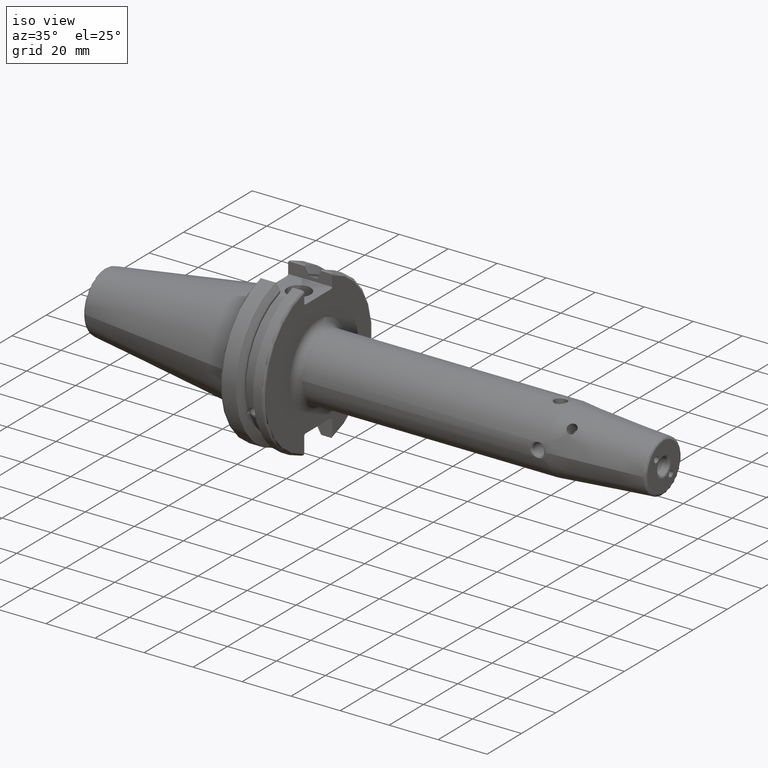
[diagram: clean part render]
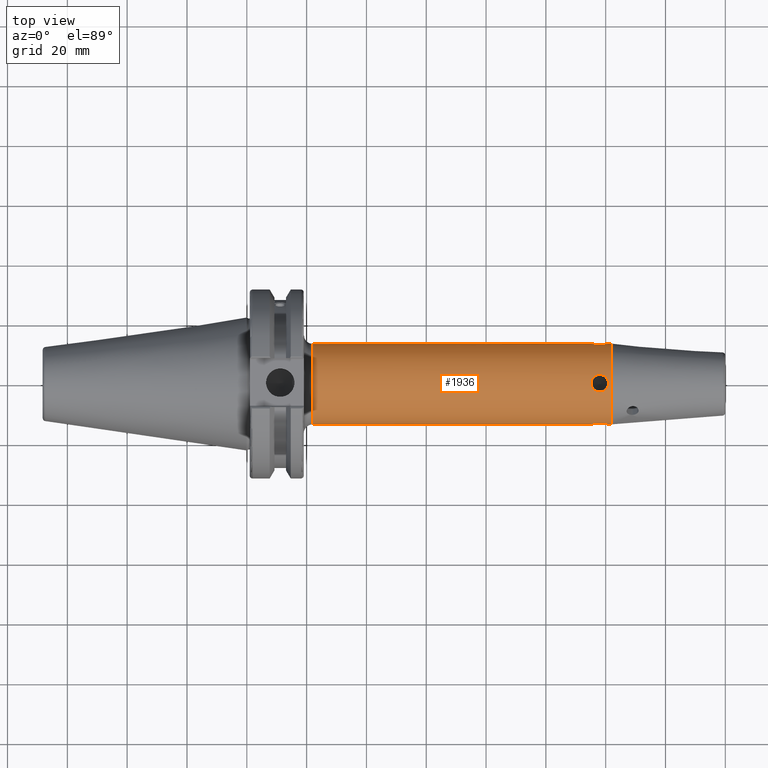
[diagram: tour spotlight — one face highlighted and labeled with its STEP entity id]
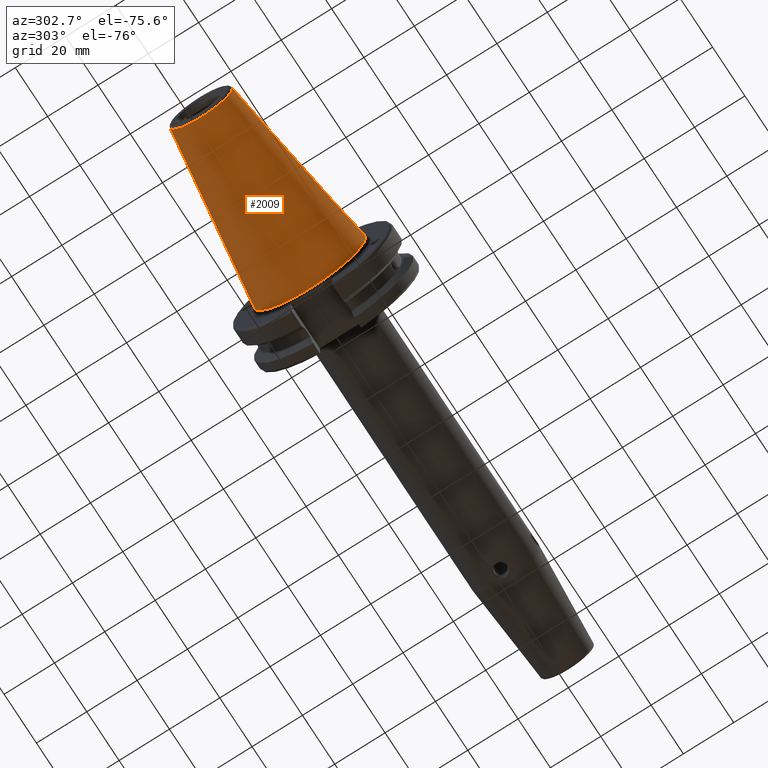
[diagram: tour spotlight — one face highlighted and labeled with its STEP entity id]
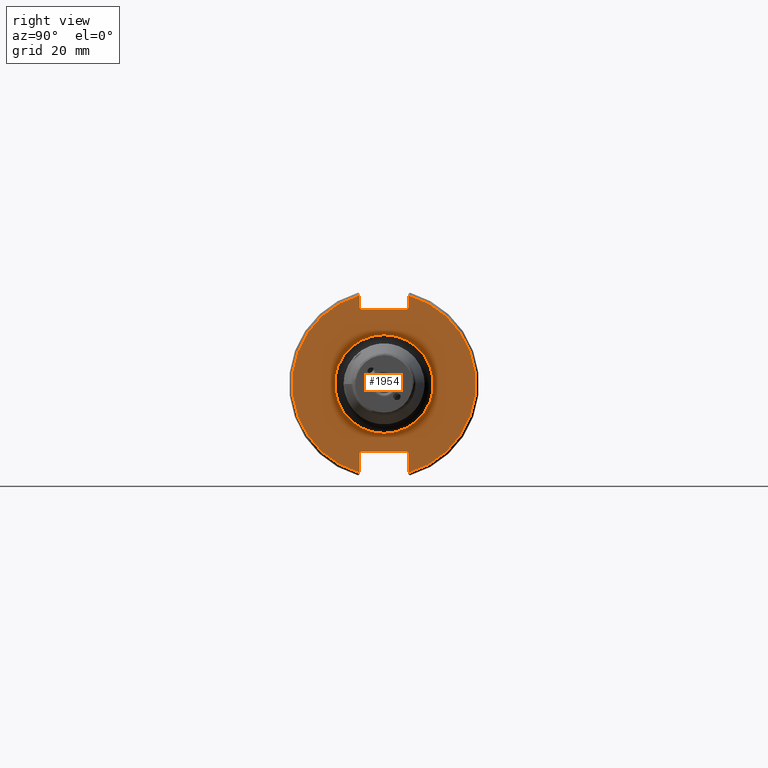
[diagram: tour spotlight — one face highlighted and labeled with its STEP entity id]
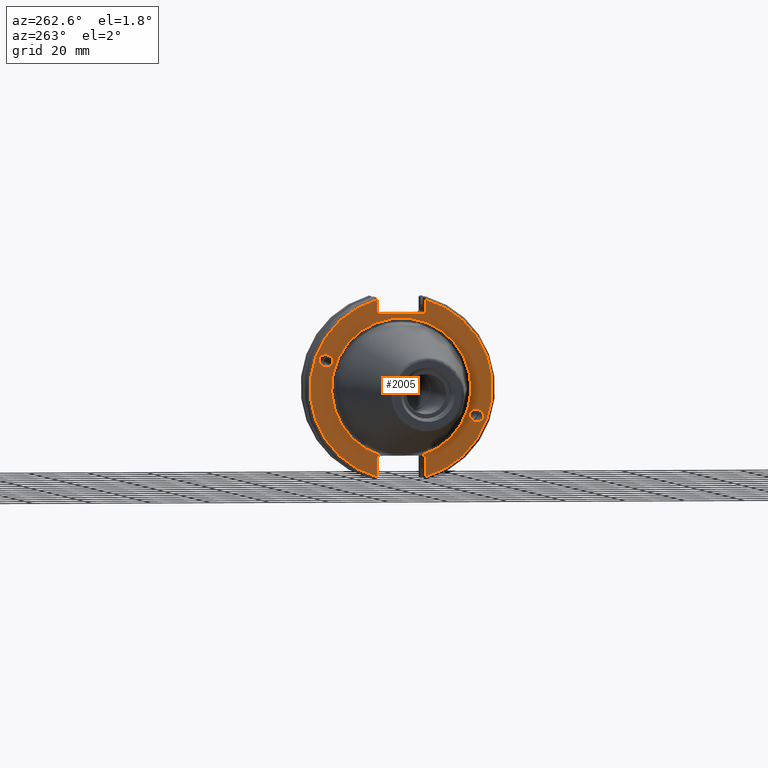
[diagram: tour spotlight — one face highlighted and labeled with its STEP entity id]
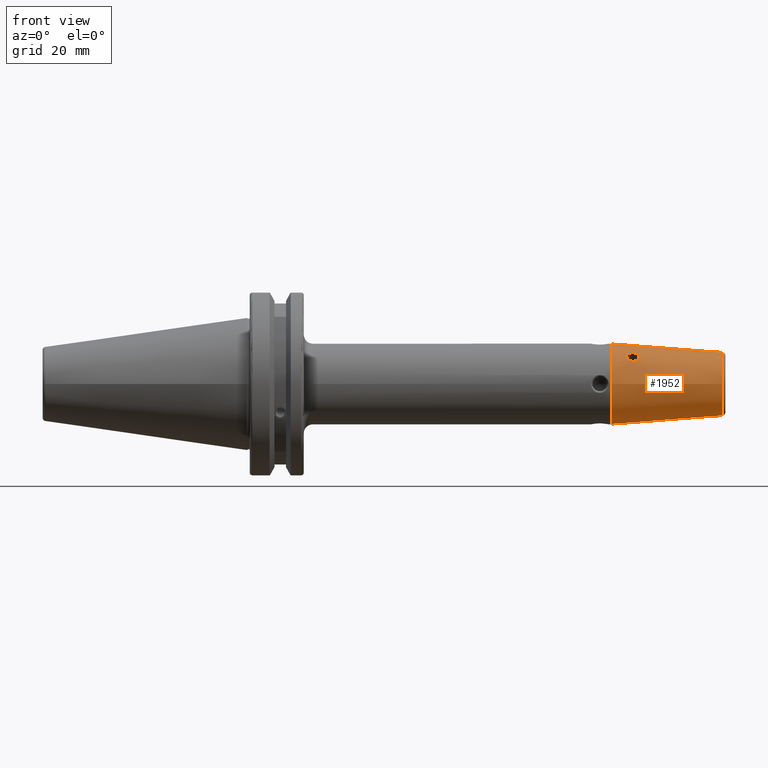
[diagram: tour spotlight — one face highlighted and labeled with its STEP entity id]
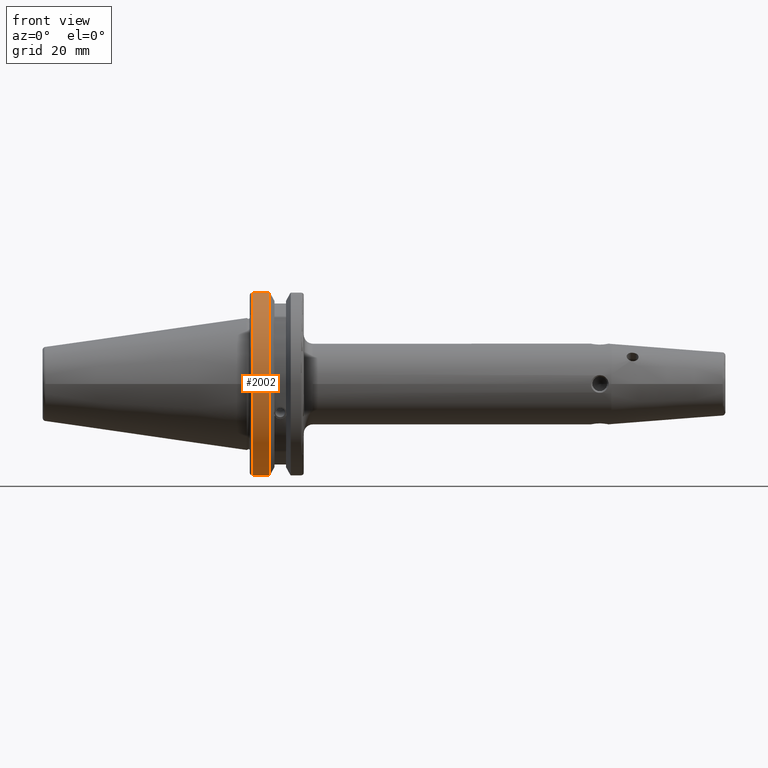
[diagram: tour spotlight — one face highlighted and labeled with its STEP entity id]
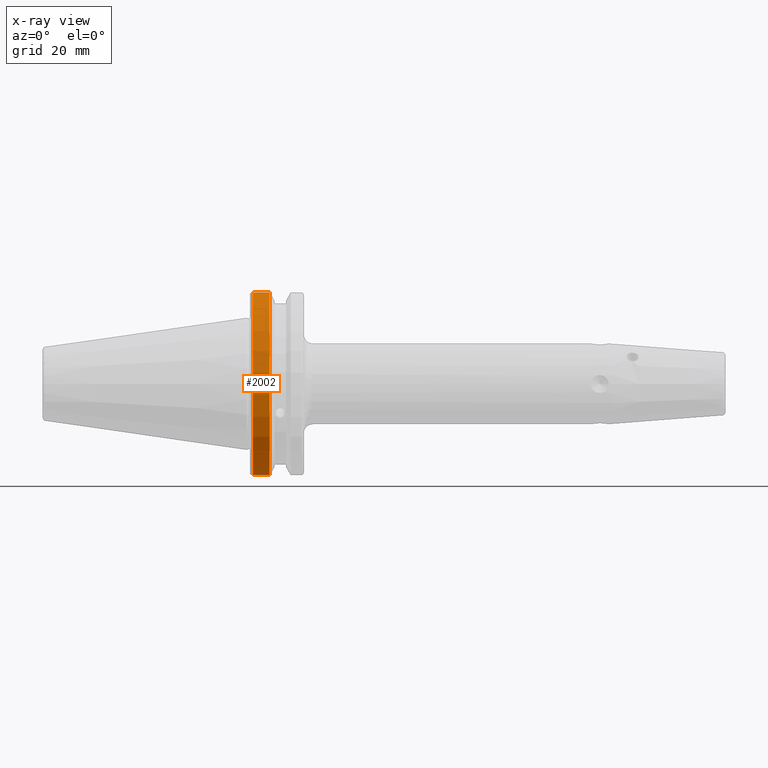
[diagram: x-ray of the same camera — body ghosted, this tour face saturated]
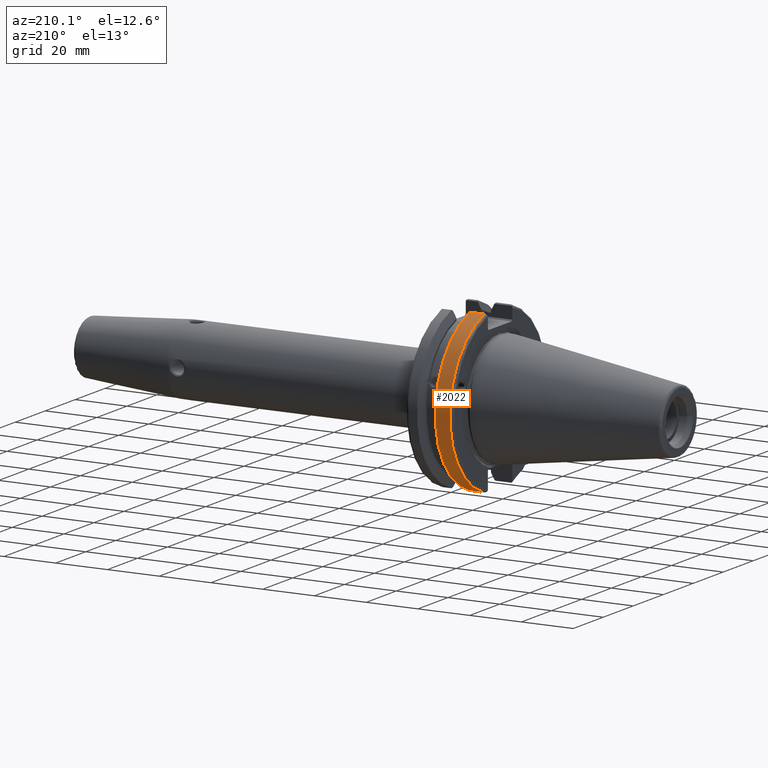
[diagram: tour spotlight — one face highlighted and labeled with its STEP entity id]
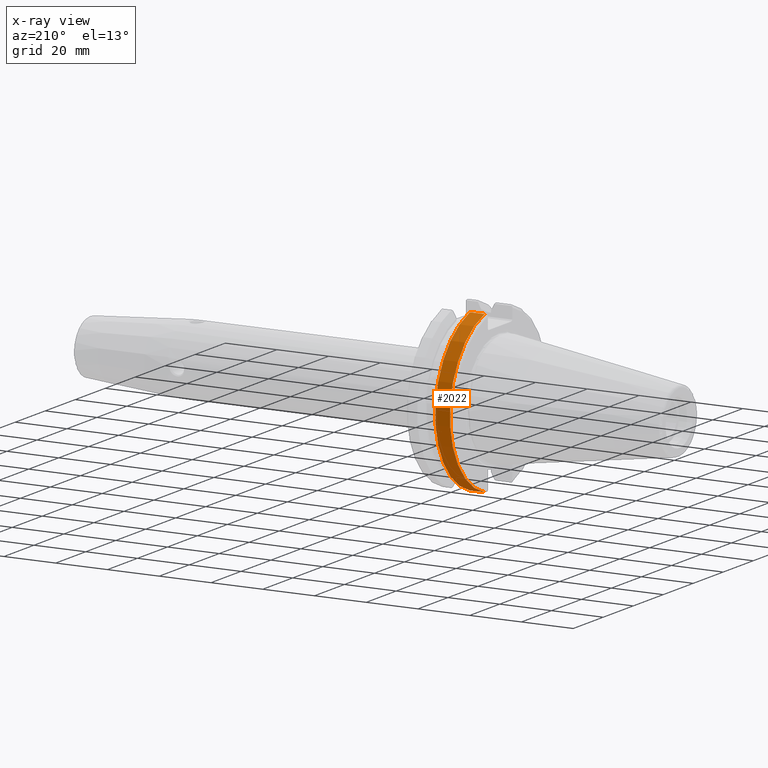
[diagram: x-ray of the same camera — body ghosted, this tour face saturated]
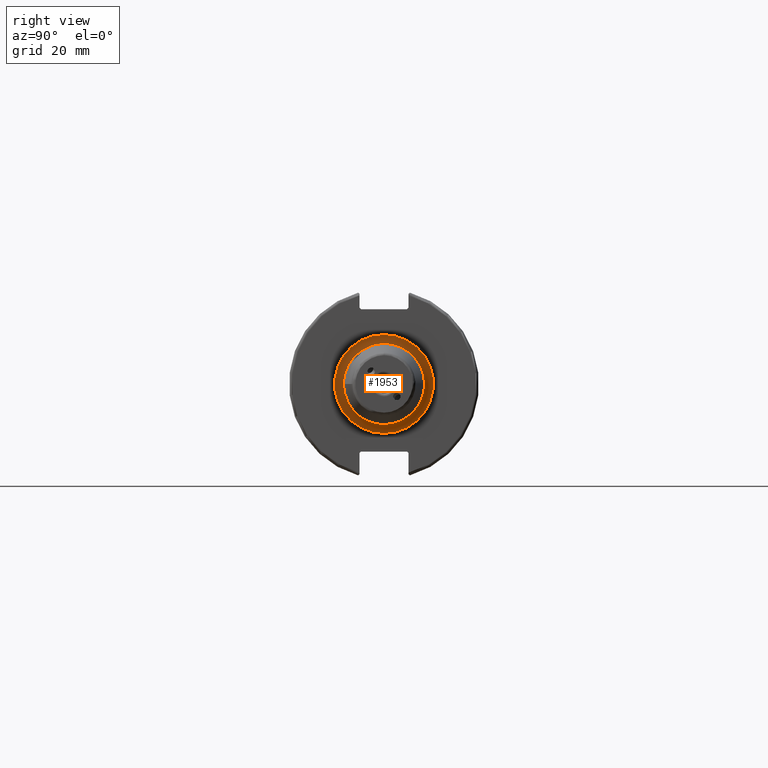
[diagram: tour spotlight — one face highlighted and labeled with its STEP entity id]
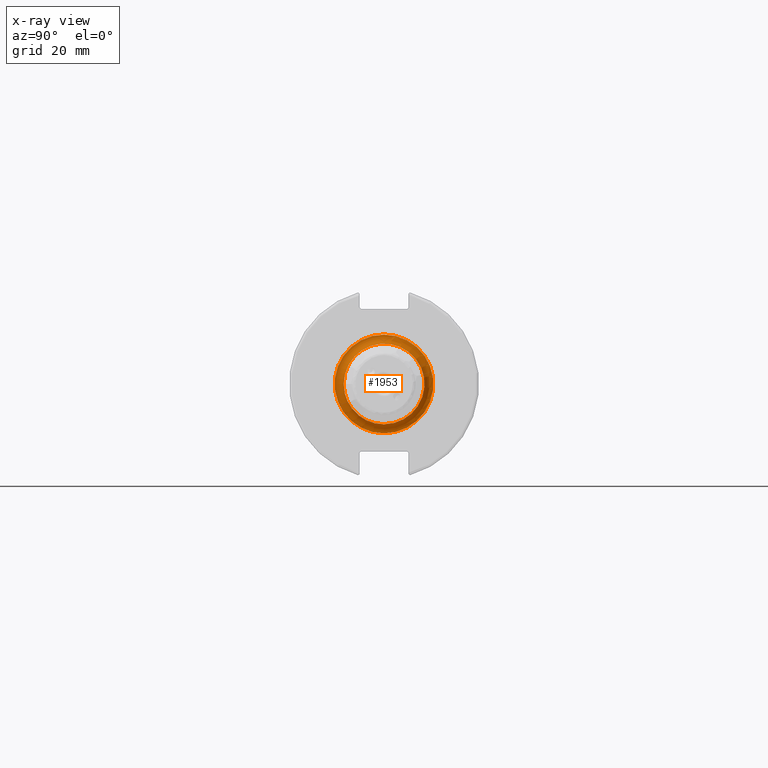
[diagram: x-ray of the same camera — body ghosted, this tour face saturated]
A machine part: a face-by-face anatomy tour. The part has 112 B-rep faces; the first image is the clean iso view, then the 8 largest visible faces are spotlighted one at a time (largest first), each with its STEP entity span.

Face 1 — top view, entity #1936. In plain terms, the highlighted cylindrical surface (bore or boss wall) has radius 13.5001 mm, axis along (1, 0, 0).
Definition (entity closure, byte-faithful):
#99=FACE_BOUND('',#270,.T.);
#100=FACE_BOUND('',#271,.T.);
#101=FACE_BOUND('',#272,.T.);
#157=FACE_OUTER_BOUND('',#269,.T.);
#269=EDGE_LOOP('',(#1322,#1323,#1324,#1325,#1326,#1327,#1328,#1329,#1330));
#270=EDGE_LOOP('',(#1331));
#271=EDGE_LOOP('',(#1332));
#272=EDGE_LOOP('',(#1333));
#405=LINE('',#3281,#522);
#406=LINE('',#3301,#523);
#522=VECTOR('',#2311,13.5001090641545);
#523=VECTOR('',#2312,13.5001090641545);
#636=CIRCLE('',#2074,13.5001090641545);
#637=CIRCLE('',#2075,13.5001090641545);
#638=CIRCLE('',#2076,13.5001090641545);
#741=B_SPLINE_CURVE_WITH_KNOTS('',3,(#3247,#3248,#3249,#3250,#3251,#3252,
#3253,#3254,#3255,#3256,#3257,#3258,#3259,#3260,#3261,#3262,#3263,#3264,
#3265,#3266,#3267,#3268,#3269,#3270,#3271,#3272,#3273,#3274,#3275,#3276),
 .UNSPECIFIED.,.T.,.F.,(4,1,1,1,1,1,2,2,2,1,1,1,1,1,1,1,1,2,1,1,1,1,1,4),
(-2.59928120698121,-2.50644973530331,-2.41361826362541,-2.39041039570593,
-2.36720252778646,-2.32078679194751,-2.22795532026961,-2.13512207236923,
-2.04228882446885,-1.97266566476604,-1.90304250506324,-1.83341934536043,
-1.79860776550903,-1.76379618565763,-1.69417302595482,-1.62454986625202,
-1.58973828640061,-1.48530354684641,-1.39247207516851,-1.34605633932956,
-1.31124453745034,-1.2996406034906,-1.2068091318127,-1.1139776601348),
 .UNSPECIFIED.);
#742=B_SPLINE_CURVE_WITH_KNOTS('',3,(#3283,#3284,#3285,#3286,#3287,#3288,
#3289,#3290,#3291,#3292,#3293,#3294,#3295,#3296,#3297,#3298,#3299),
 .UNSPECIFIED.,.F.,.F.,(4,1,1,1,1,1,1,2,1,1,1,1,1,4),(-1.85662943355801,
-1.83341934536043,-1.79860776550903,-1.76379618565763,-1.69417302595482,
-1.62454986625202,-1.58973828640061,-1.48530354684641,-1.39247207516851,
-1.34605633932956,-1.31124453745034,-1.2996406034906,-1.2068091318127,-1.1139776601348),
 .UNSPECIFIED.);
#743=B_SPLINE_CURVE_WITH_KNOTS('',3,(#3305,#3306,#3307,#3308,#3309,#3310,
#3311,#3312,#3313,#3314,#3315,#3316,#3317,#3318,#3319,#3320,#3321),
 .UNSPECIFIED.,.F.,.F.,(4,1,1,1,1,1,2,2,2,1,1,4),(-2.59928120698121,-2.50644973530331,
-2.41361826362541,-2.39041039570593,-2.36720252778646,-2.32078679194751,
-2.22795532026961,-2.13512207236923,-2.04228882446885,-1.97266566476604,
-1.90304250506324,-1.85662943355801),.UNSPECIFIED.);
#744=B_SPLINE_CURVE_WITH_KNOTS('',3,(#3323,#3324,#3325,#3326,#3327,#3328,
#3329,#3330,#3331,#3332,#3333,#3334,#3335,#3336,#3337,#3338,#3339,#3340,
#3341,#3342,#3343,#3344,#3345,#3346,#3347,#3348,#3349,#3350,#3351,#3352),
 .UNSPECIFIED.,.T.,.F.,(4,1,1,1,1,1,2,2,2,1,1,1,1,1,1,1,1,2,1,1,1,1,1,4),
(-2.59928120698121,-2.50644973530331,-2.41361826362541,-2.39041039570593,
-2.36720252778646,-2.32078679194751,-2.22795532026961,-2.13512207236923,
-2.04228882446885,-1.97266566476604,-1.90304250506324,-1.83341934536043,
-1.79860776550903,-1.76379618565763,-1.69417302595482,-1.62454986625202,
-1.58973828640061,-1.48530354684641,-1.39247207516851,-1.34605633932956,
-1.31124453745034,-1.2996406034906,-1.2068091318127,-1.1139776601348),
 .UNSPECIFIED.);
#745=B_SPLINE_CURVE_WITH_KNOTS('',3,(#3354,#3355,#3356,#3357,#3358,#3359,
#3360,#3361,#3362,#3363,#3364,#3365,#3366,#3367,#3368,#3369,#3370,#3371,
#3372,#3373,#3374,#3375,#3376,#3377,#3378,#3379,#3380,#3381,#3382,#3383),
 .UNSPECIFIED.,.T.,.F.,(4,1,1,1,1,1,2,2,2,1,1,1,1,1,1,1,1,2,1,1,1,1,1,4),
(-2.59928120698121,-2.50644973530331,-2.41361826362541,-2.39041039570593,
-2.36720252778646,-2.32078679194751,-2.22795532026961,-2.13512207236923,
-2.04228882446885,-1.97266566476604,-1.90304250506324,-1.83341934536043,
-1.79860776550903,-1.76379618565763,-1.69417302595482,-1.62454986625202,
-1.58973828640061,-1.48530354684641,-1.39247207516851,-1.34605633932956,
-1.31124453745034,-1.2996406034906,-1.2068091318127,-1.1139776601348),
 .UNSPECIFIED.);
#800=VERTEX_POINT('',#3214);
#802=VERTEX_POINT('',#3278);
#803=VERTEX_POINT('',#3280);
#804=VERTEX_POINT('',#3282);
#805=VERTEX_POINT('',#3300);
#806=VERTEX_POINT('',#3302);
#807=VERTEX_POINT('',#3322);
#808=VERTEX_POINT('',#3353);
#1009=EDGE_CURVE('',#800,#800,#741,.T.);
#1010=EDGE_CURVE('',#802,#802,#636,.T.);
#1011=EDGE_CURVE('',#802,#803,#405,.T.);
#1012=EDGE_CURVE('',#804,#803,#742,.T.);
#1013=EDGE_CURVE('',#804,#805,#406,.T.);
#1014=EDGE_CURVE('',#806,#805,#637,.T.);
#1015=EDGE_CURVE('',#805,#806,#638,.T.);
#1016=EDGE_CURVE('',#803,#804,#743,.T.);
#1017=EDGE_CURVE('',#807,#807,#744,.T.);
#1018=EDGE_CURVE('',#808,#808,#745,.T.);
#1322=ORIENTED_EDGE('',*,*,#1010,.F.);
#1323=ORIENTED_EDGE('',*,*,#1011,.T.);
#1324=ORIENTED_EDGE('',*,*,#1012,.F.);
#1325=ORIENTED_EDGE('',*,*,#1013,.T.);
#1326=ORIENTED_EDGE('',*,*,#1014,.F.);
#1327=ORIENTED_EDGE('',*,*,#1015,.F.);
#1328=ORIENTED_EDGE('',*,*,#1013,.F.);
#1329=ORIENTED_EDGE('',*,*,#1016,.F.);
#1330=ORIENTED_EDGE('',*,*,#1011,.F.);
#1331=ORIENTED_EDGE('',*,*,#1017,.F.);
#1332=ORIENTED_EDGE('',*,*,#1018,.F.);
#1333=ORIENTED_EDGE('',*,*,#1009,.F.);
#1894=CYLINDRICAL_SURFACE('',#2073,13.5001090641545);
#1936=ADVANCED_FACE('',(#157,#99,#100,#101),#1894,.T.);
#2073=AXIS2_PLACEMENT_3D('',#3277,#2307,#2308);
#2074=AXIS2_PLACEMENT_3D('',#3279,#2309,#2310);
#2075=AXIS2_PLACEMENT_3D('',#3303,#2313,#2314);
#2076=AXIS2_PLACEMENT_3D('',#3304,#2315,#2316);
#2307=DIRECTION('center_axis',(1.,0.,0.));
#2308=DIRECTION('ref_axis',(0.,1.,0.));
#2309=DIRECTION('center_axis',(1.,0.,0.));
#2310=DIRECTION('ref_axis',(0.,0.,-1.));
#2311=DIRECTION('',(-1.,0.,0.));
#2312=DIRECTION('',(-1.,0.,0.));
#2313=DIRECTION('center_axis',(-1.,0.,0.));
#2314=DIRECTION('ref_axis',(0.,-1.,-1.22464679914735E-16));
#2315=DIRECTION('center_axis',(-1.,0.,0.));
#2316=DIRECTION('ref_axis',(0.,-1.,-1.22464679914735E-16));
#3214=CARTESIAN_POINT('',(120.9585,-5.23886489744996E-15,-13.5001090641545));
#3247=CARTESIAN_POINT('Ctrl Pts',(120.9585,-5.23886489744996E-15,-13.5001090641545));
#3248=CARTESIAN_POINT('Ctrl Pts',(120.9585,-0.372370563296135,-13.5001090641545));
#3249=CARTESIAN_POINT('Ctrl Pts',(120.807522215054,-1.16757017069908,-13.4653242848681));
#3250=CARTESIAN_POINT('Ctrl Pts',(120.300534778733,-1.90725883930807,-13.3678375290195));
#3251=CARTESIAN_POINT('Ctrl Pts',(119.889455567981,-2.27825835206268,-13.3067603343362));
#3252=CARTESIAN_POINT('Ctrl Pts',(119.578719596875,-2.50996444732285,-13.2655355944975));
#3253=CARTESIAN_POINT('Ctrl Pts',(118.969980466837,-2.8367574537043,-13.200182031107));
#3254=CARTESIAN_POINT('Ctrl Pts',(118.373102206601,-2.94864668926697,-13.1742309009541));
#3255=CARTESIAN_POINT('Ctrl Pts',(117.626065611309,-2.94926735713007,-13.1739969935398));
#3256=CARTESIAN_POINT('Ctrl Pts',(117.228473815688,-2.8748847017233,-13.191281065378));
#3257=CARTESIAN_POINT('Ctrl Pts',(116.499236078494,-2.57426474171268,-13.2534239013625));
#3258=CARTESIAN_POINT('Ctrl Pts',(116.167362856846,-2.34882351645335,-13.2969471870811));
#3259=CARTESIAN_POINT('Ctrl Pts',(115.710168940415,-1.89153255363773,-13.3683874157703));
#3260=CARTESIAN_POINT('Ctrl Pts',(115.354348442239,-1.42673045303506,-13.4328884222516));
#3261=CARTESIAN_POINT('Ctrl Pts',(115.052713470803,-0.568712841656767,-13.4974923980499));
#3262=CARTESIAN_POINT('Ctrl Pts',(115.020956175772,0.14157324505003,-13.5046255504611));
#3263=CARTESIAN_POINT('Ctrl Pts',(115.117550026019,0.715378358204945,-13.4835274276809));
#3264=CARTESIAN_POINT('Ctrl Pts',(115.303007930426,1.28044197603352,-13.444521767592));
#3265=CARTESIAN_POINT('Ctrl Pts',(115.690732701824,1.91227816756087,-13.3695356214214));
#3266=CARTESIAN_POINT('Ctrl Pts',(116.209064780669,2.37937041340219,-13.2904291913485));
#3267=CARTESIAN_POINT('Ctrl Pts',(116.981712474937,2.82375574980693,-13.2038534389187));
#3268=CARTESIAN_POINT('Ctrl Pts',(117.578668509736,2.94945068746149,-13.1736401585214));
#3269=CARTESIAN_POINT('Ctrl Pts',(118.373040793871,2.94948425107077,-13.1738501162956));
#3270=CARTESIAN_POINT('Ctrl Pts',(118.969217135754,2.83684136393713,-13.200113936828));
#3271=CARTESIAN_POINT('Ctrl Pts',(119.622129570566,2.48648019941026,-13.2701305825957));
#3272=CARTESIAN_POINT('Ctrl Pts',(119.925636391161,2.24803232295276,-13.311909828675));
#3273=CARTESIAN_POINT('Ctrl Pts',(120.327928446348,1.86655022508883,-13.3731145552918));
#3274=CARTESIAN_POINT('Ctrl Pts',(120.80741095789,1.16655985376301,-13.4651448606805));
#3275=CARTESIAN_POINT('Ctrl Pts',(120.9585,0.372370563296126,-13.5001090641545));
#3276=CARTESIAN_POINT('Ctrl Pts',(120.9585,-2.77555756156289E-15,-13.5001090641545));
#3277=CARTESIAN_POINT('Origin',(70.465,0.,0.));
#3278=CARTESIAN_POINT('',(121.88,-13.5001090641545,-1.65328653535569E-15));
#3279=CARTESIAN_POINT('Origin',(121.88,0.,0.));
#3280=CARTESIAN_POINT('',(120.9585,-13.5001090641545,5.10008701937181E-15));
#3281=CARTESIAN_POINT('',(70.465,-13.5001090641545,-1.65328653535569E-15));
#3282=CARTESIAN_POINT('',(115.040983641594,-13.5002056039802,-2.65297333035958E-6));
#3283=CARTESIAN_POINT('Ctrl Pts',(115.040983641594,-13.5002056039802,-2.6529733303509E-6));
#3284=CARTESIAN_POINT('Ctrl Pts',(115.041146376205,-13.5001791596063,-0.0950275363256613));
#3285=CARTESIAN_POINT('Ctrl Pts',(115.053152482989,-13.4975932017038,-0.332831856843915));
#3286=CARTESIAN_POINT('Ctrl Pts',(115.117550026019,-13.4835274276809,-0.715378358204941));
#3287=CARTESIAN_POINT('Ctrl Pts',(115.303007930426,-13.4445217675919,-1.28044197603352));
#3288=CARTESIAN_POINT('Ctrl Pts',(115.690732701824,-13.3695356214214,-1.91227816756087));
#3289=CARTESIAN_POINT('Ctrl Pts',(116.209064780669,-13.2904291913484,-2.37937041340218));
#3290=CARTESIAN_POINT('Ctrl Pts',(116.981712474937,-13.2038534389186,-2.82375574980692));
#3291=CARTESIAN_POINT('Ctrl Pts',(117.578668509736,-13.1736401585214,-2.94945068746149));
#3292=CARTESIAN_POINT('Ctrl Pts',(118.373040793871,-13.1738501162956,-2.94948425107077));
#3293=CARTESIAN_POINT('Ctrl Pts',(118.969217135754,-13.200113936828,-2.83684136393713));
#3294=CARTESIAN_POINT('Ctrl Pts',(119.622129570566,-13.2701305825957,-2.48648019941026));
#3295=CARTESIAN_POINT('Ctrl Pts',(119.925636391161,-13.311909828675,-2.24803232295276));
#3296=CARTESIAN_POINT('Ctrl Pts',(120.327928446348,-13.3731145552918,-1.86655022508884));
#3297=CARTESIAN_POINT('Ctrl Pts',(120.80741095789,-13.4651448606805,-1.16655985376301));
#3298=CARTESIAN_POINT('Ctrl Pts',(120.9585,-13.5001090641545,-0.372370563296124));
#3299=CARTESIAN_POINT('Ctrl Pts',(120.9585,-13.5001090641545,2.22044604925031E-15));
#3300=CARTESIAN_POINT('',(22.05,-13.5001090641545,-1.65328653535569E-15));
#3301=CARTESIAN_POINT('',(70.465,-13.5001090641545,-1.65328653535569E-15));
#3302=CARTESIAN_POINT('',(22.05,-1.65328653535569E-15,-13.5001090641545));
#3303=CARTESIAN_POINT('Origin',(22.05,0.,0.));
#3304=CARTESIAN_POINT('Origin',(22.05,0.,0.));
#3305=CARTESIAN_POINT('Ctrl Pts',(120.9585,-13.5001090641545,5.10008701937181E-15));
#3306=CARTESIAN_POINT('Ctrl Pts',(120.9585,-13.5001090641545,0.372370563296122));
#3307=CARTESIAN_POINT('Ctrl Pts',(120.807522215054,-13.4653242848681,1.16757017069908));
#3308=CARTESIAN_POINT('Ctrl Pts',(120.300534778732,-13.3678375290195,1.90725883930806));
#3309=CARTESIAN_POINT('Ctrl Pts',(119.88945556798,-13.3067603343362,2.27825835206268));
#3310=CARTESIAN_POINT('Ctrl Pts',(119.578719596875,-13.2655355944975,2.50996444732284));
#3311=CARTESIAN_POINT('Ctrl Pts',(118.969980466837,-13.200182031107,2.83675745370429));
#3312=CARTESIAN_POINT('Ctrl Pts',(118.373102206601,-13.1742309009541,2.94864668926696));
#3313=CARTESIAN_POINT('Ctrl Pts',(117.626065611309,-13.1739969935398,2.94926735713006));
#3314=CARTESIAN_POINT('Ctrl Pts',(117.228473815688,-13.191281065378,2.87488470172329));
#3315=CARTESIAN_POINT('Ctrl Pts',(116.499236078493,-13.2534239013625,2.57426474171267));
#3316=CARTESIAN_POINT('Ctrl Pts',(116.167362856846,-13.296947187081,2.34882351645333));
#3317=CARTESIAN_POINT('Ctrl Pts',(115.710168940415,-13.3683874157702,1.89153255363774));
#3318=CARTESIAN_POINT('Ctrl Pts',(115.354348442238,-13.4328884222516,1.42673045303506));
#3319=CARTESIAN_POINT('Ctrl Pts',(115.08623188776,-13.4903134459952,0.664057860566049));
#3320=CARTESIAN_POINT('Ctrl Pts',(115.040658222187,-13.5002584846331,0.190018025460302));
#3321=CARTESIAN_POINT('Ctrl Pts',(115.040983641594,-13.5002056039802,-2.6529733303509E-6));
#3322=CARTESIAN_POINT('',(120.9585,13.5001090641545,-3.08780778723872E-15));
#3323=CARTESIAN_POINT('Ctrl Pts',(120.9585,13.5001090641545,-3.08780778723872E-15));
#3324=CARTESIAN_POINT('Ctrl Pts',(120.9585,13.5001090641545,-0.372370563296123));
#3325=CARTESIAN_POINT('Ctrl Pts',(120.807522215054,13.4653242848681,-1.16757017069906));
#3326=CARTESIAN_POINT('Ctrl Pts',(120.300534778732,13.3678375290195,-1.90725883930805));
#3327=CARTESIAN_POINT('Ctrl Pts',(119.88945556798,13.3067603343362,-2.27825835206266));
#3328=CARTESIAN_POINT('Ctrl Pts',(119.578719596875,13.2655355944975,-2.50996444732283));
#3329=CARTESIAN_POINT('Ctrl Pts',(118.969980466837,13.200182031107,-2.83675745370427));
#3330=CARTESIAN_POINT('Ctrl Pts',(118.373102206601,13.1742309009541,-2.94864668926695));
#3331=CARTESIAN_POINT('Ctrl Pts',(117.626065611309,13.1739969935398,-2.94926735713004));
#3332=CARTESIAN_POINT('Ctrl Pts',(117.228473815688,13.191281065378,-2.87488470172328));
#3333=CARTESIAN_POINT('Ctrl Pts',(116.499236078493,13.2534239013625,-2.57426474171262));
#3334=CARTESIAN_POINT('Ctrl Pts',(116.167362856846,13.296947187081,-2.34882351645339));
#3335=CARTESIAN_POINT('Ctrl Pts',(115.710168940415,13.3683874157702,-1.89153255363777));
#3336=CARTESIAN_POINT('Ctrl Pts',(115.354348442238,13.4328884222516,-1.42673045303508));
#3337=CARTESIAN_POINT('Ctrl Pts',(115.052713470802,13.4974923980499,-0.568712841656786));
#3338=CARTESIAN_POINT('Ctrl Pts',(115.020956175772,13.504625550461,0.141573245050014));
#3339=CARTESIAN_POINT('Ctrl Pts',(115.117550026019,13.4835274276809,0.71537835820493));
#3340=CARTESIAN_POINT('Ctrl Pts',(115.303007930426,13.4445217675919,1.28044197603351));
#3341=CARTESIAN_POINT('Ctrl Pts',(115.690732701824,13.3695356214214,1.91227816756086));
#3342=CARTESIAN_POINT('Ctrl Pts',(116.209064780669,13.2904291913484,2.37937041340218));
#3343=CARTESIAN_POINT('Ctrl Pts',(116.981712474937,13.2038534389186,2.82375574980692));
#3344=CARTESIAN_POINT('Ctrl Pts',(117.578668509736,13.1736401585214,2.94945068746148));
#3345=CARTESIAN_POINT('Ctrl Pts',(118.373040793871,13.1738501162955,2.94948425107077));
#3346=CARTESIAN_POINT('Ctrl Pts',(118.969217135754,13.200113936828,2.83684136393713));
#3347=CARTESIAN_POINT('Ctrl Pts',(119.622129570566,13.2701305825957,2.48648019941026));
#3348=CARTESIAN_POINT('Ctrl Pts',(119.925636391161,13.311909828675,2.24803232295276));
#3349=CARTESIAN_POINT('Ctrl Pts',(120.327928446348,13.3731145552918,1.86655022508883));
#3350=CARTESIAN_POINT('Ctrl Pts',(120.80741095789,13.4651448606805,1.16655985376301));
#3351=CARTESIAN_POINT('Ctrl Pts',(120.9585,13.5001090641545,0.372370563296127));
#3352=CARTESIAN_POINT('Ctrl Pts',(120.9585,13.5001090641545,-5.55111512312578E-16));
#3353=CARTESIAN_POINT('',(120.9585,3.88578058618805E-15,13.5001090641545));
#3354=CARTESIAN_POINT('Ctrl Pts',(120.9585,3.88578058618805E-15,13.5001090641545));
#3355=CARTESIAN_POINT('Ctrl Pts',(120.9585,0.372370563296123,13.5001090641545));
#3356=CARTESIAN_POINT('Ctrl Pts',(120.807522215054,1.16757017069907,13.4653242848681));
#3357=CARTESIAN_POINT('Ctrl Pts',(120.300534778732,1.90725883930806,13.3678375290195));
#3358=CARTESIAN_POINT('Ctrl Pts',(119.88945556798,2.27825835206268,13.3067603343362));
#3359=CARTESIAN_POINT('Ctrl Pts',(119.578719596875,2.50996444732284,13.2655355944975));
#3360=CARTESIAN_POINT('Ctrl Pts',(118.969980466837,2.83675745370429,13.200182031107));
#3361=CARTESIAN_POINT('Ctrl Pts',(118.373102206601,2.94864668926696,13.1742309009541));
#3362=CARTESIAN_POINT('Ctrl Pts',(117.626065611309,2.94926735713006,13.1739969935398));
#3363=CARTESIAN_POINT('Ctrl Pts',(117.228473815688,2.87488470172329,13.191281065378));
#3364=CARTESIAN_POINT('Ctrl Pts',(116.499236078493,2.57426474171267,13.2534239013625));
#3365=CARTESIAN_POINT('Ctrl Pts',(116.167362856846,2.34882351645334,13.296947187081));
#3366=CARTESIAN_POINT('Ctrl Pts',(115.710168940415,1.89153255363774,13.3683874157702));
#3367=CARTESIAN_POINT('Ctrl Pts',(115.354348442238,1.42673045303505,13.4328884222516));
#3368=CARTESIAN_POINT('Ctrl Pts',(115.052713470802,0.568712841656768,13.4974923980498));
#3369=CARTESIAN_POINT('Ctrl Pts',(115.020956175772,-0.14157324505003,13.504625550461));
#3370=CARTESIAN_POINT('Ctrl Pts',(115.117550026019,-0.715378358204943,13.4835274276809));
#3371=CARTESIAN_POINT('Ctrl Pts',(115.303007930426,-1.28044197603352,13.4445217675919));
#3372=CARTESIAN_POINT('Ctrl Pts',(115.690732701824,-1.91227816756087,13.3695356214214));
#3373=CARTESIAN_POINT('Ctrl Pts',(116.209064780669,-2.37937041340219,13.2904291913484));
#3374=CARTESIAN_POINT('Ctrl Pts',(116.981712474937,-2.82375574980693,13.2038534389186));
#3375=CARTESIAN_POINT('Ctrl Pts',(117.578668509736,-2.94945068746149,13.1736401585214));
#3376=CARTESIAN_POINT('Ctrl Pts',(118.373040793871,-2.94948425107078,13.1738501162956));
#3377=CARTESIAN_POINT('Ctrl Pts',(118.969217135754,-2.83684136393713,13.200113936828));
#3378=CARTESIAN_POINT('Ctrl Pts',(119.622129570566,-2.48648019941026,13.2701305825957));
#3379=CARTESIAN_POINT('Ctrl Pts',(119.925636391161,-2.24803232295277,13.311909828675));
#3380=CARTESIAN_POINT('Ctrl Pts',(120.327928446348,-1.86655022508884,13.3731145552918));
#3381=CARTESIAN_POINT('Ctrl Pts',(120.80741095789,-1.16655985376302,13.4651448606805));
#3382=CARTESIAN_POINT('Ctrl Pts',(120.9585,-0.372370563296127,13.5001090641545));
#3383=CARTESIAN_POINT('Ctrl Pts',(120.9585,1.2490009027033E-15,13.5001090641545));

Face 2 — auxiliary view, entity #2009. In plain terms, the highlighted conical surface has half-angle 8.297 deg.
Definition (entity closure, byte-faithful):
#144=CONICAL_SURFACE('',#2232,17.2484375,0.144812498238939);
#230=FACE_OUTER_BOUND('',#363,.T.);
#363=EDGE_LOOP('',(#1738,#1739,#1740,#1741,#1742));
#494=LINE('',#4617,#611);
#611=VECTOR('',#2718,17.2484375);
#700=CIRCLE('',#2226,12.3966635780937);
#701=CIRCLE('',#2227,12.3966635780937);
#705=CIRCLE('',#2233,22.225);
#961=VERTEX_POINT('',#4604);
#962=VERTEX_POINT('',#4605);
#965=VERTEX_POINT('',#4615);
#1236=EDGE_CURVE('',#961,#962,#700,.T.);
#1237=EDGE_CURVE('',#962,#961,#701,.T.);
#1241=EDGE_CURVE('',#965,#965,#705,.T.);
#1242=EDGE_CURVE('',#965,#962,#494,.T.);
#1738=ORIENTED_EDGE('',*,*,#1241,.F.);
#1739=ORIENTED_EDGE('',*,*,#1242,.T.);
#1740=ORIENTED_EDGE('',*,*,#1236,.F.);
#1741=ORIENTED_EDGE('',*,*,#1237,.F.);
#1742=ORIENTED_EDGE('',*,*,#1242,.F.);
#2009=ADVANCED_FACE('',(#230),#144,.T.);
#2226=AXIS2_PLACEMENT_3D('',#4606,#2702,#2703);
#2227=AXIS2_PLACEMENT_3D('',#4607,#2704,#2705);
#2232=AXIS2_PLACEMENT_3D('',#4614,#2714,#2715);
#2233=AXIS2_PLACEMENT_3D('',#4616,#2716,#2717);
#2702=DIRECTION('center_axis',(-1.,0.,0.));
#2703=DIRECTION('ref_axis',(0.,-1.,3.06161699786838E-17));
#2704=DIRECTION('center_axis',(-1.,0.,0.));
#2705=DIRECTION('ref_axis',(0.,-1.,3.06161699786838E-17));
#2714=DIRECTION('center_axis',(1.,0.,0.));
#2715=DIRECTION('ref_axis',(0.,1.,0.));
#2716=DIRECTION('center_axis',(1.,0.,0.));
#2717=DIRECTION('ref_axis',(0.,0.,-1.));
#2718=DIRECTION('',(-0.989532981063282,0.144306893071729,1.76724974695192E-17));
#4604=CARTESIAN_POINT('',(-67.3943068930717,-1.5181534371019E-15,12.3966635780937));
#4605=CARTESIAN_POINT('',(-67.3943068930718,-12.3966635780937,-1.5181534371019E-15));
#4606=CARTESIAN_POINT('Origin',(-67.3943068930717,0.,-1.89769179637738E-15));
#4607=CARTESIAN_POINT('Origin',(-67.3943068930717,0.,-1.89769179637738E-15));
#4614=CARTESIAN_POINT('Origin',(-34.125,0.,0.));
#4615=CARTESIAN_POINT('',(0.,-22.225,-2.72177751110499E-15));
#4616=CARTESIAN_POINT('Origin',(0.,0.,0.));
#4617=CARTESIAN_POINT('',(-34.125,-17.2484375,-2.11232437746682E-15));

Face 3 — right view, entity #1954. In plain terms, the highlighted planar face has unit normal (1, 0, 0).
Definition (entity closure, byte-faithful):
#53=PLANE('',#2108);
#106=FACE_BOUND('',#295,.T.);
#175=FACE_OUTER_BOUND('',#294,.T.);
#294=EDGE_LOOP('',(#1406,#1407,#1408,#1409,#1410,#1411,#1412,#1413,#1414,
#1415,#1416,#1417));
#295=EDGE_LOOP('',(#1418));
#420=LINE('',#3904,#537);
#421=LINE('',#3906,#538);
#422=LINE('',#3908,#539);
#423=LINE('',#3910,#540);
#424=LINE('',#3912,#541);
#425=LINE('',#3916,#542);
#426=LINE('',#3918,#543);
#427=LINE('',#3920,#544);
#428=LINE('',#3922,#545);
#429=LINE('',#3923,#546);
#537=VECTOR('',#2396,10.);
#538=VECTOR('',#2397,10.);
#539=VECTOR('',#2398,10.);
#540=VECTOR('',#2399,10.);
#541=VECTOR('',#2400,10.);
#542=VECTOR('',#2403,10.);
#543=VECTOR('',#2404,10.);
#544=VECTOR('',#2405,10.);
#545=VECTOR('',#2406,10.);
#546=VECTOR('',#2407,10.);
#653=CIRCLE('',#2107,16.5001090641545);
#654=CIRCLE('',#2109,30.75);
#655=CIRCLE('',#2110,30.75);
#829=VERTEX_POINT('',#3896);
#830=VERTEX_POINT('',#3900);
#831=VERTEX_POINT('',#3901);
#832=VERTEX_POINT('',#3903);
#833=VERTEX_POINT('',#3905);
#834=VERTEX_POINT('',#3907);
#835=VERTEX_POINT('',#3909);
#836=VERTEX_POINT('',#3911);
#837=VERTEX_POINT('',#3913);
#838=VERTEX_POINT('',#3915);
#839=VERTEX_POINT('',#3917);
#840=VERTEX_POINT('',#3919);
#841=VERTEX_POINT('',#3921);
#1051=EDGE_CURVE('',#829,#829,#653,.T.);
#1052=EDGE_CURVE('',#830,#831,#654,.T.);
#1053=EDGE_CURVE('',#830,#832,#420,.T.);
#1054=EDGE_CURVE('',#833,#832,#421,.T.);
#1055=EDGE_CURVE('',#833,#834,#422,.T.);
#1056=EDGE_CURVE('',#835,#834,#423,.T.);
#1057=EDGE_CURVE('',#835,#836,#424,.T.);
#1058=EDGE_CURVE('',#837,#836,#655,.T.);
#1059=EDGE_CURVE('',#837,#838,#425,.T.);
#1060=EDGE_CURVE('',#839,#838,#426,.T.);
#1061=EDGE_CURVE('',#839,#840,#427,.T.);
#1062=EDGE_CURVE('',#841,#840,#428,.T.);
#1063=EDGE_CURVE('',#841,#831,#429,.T.);
#1406=ORIENTED_EDGE('',*,*,#1052,.F.);
#1407=ORIENTED_EDGE('',*,*,#1053,.T.);
#1408=ORIENTED_EDGE('',*,*,#1054,.F.);
#1409=ORIENTED_EDGE('',*,*,#1055,.T.);
#1410=ORIENTED_EDGE('',*,*,#1056,.F.);
#1411=ORIENTED_EDGE('',*,*,#1057,.T.);
#1412=ORIENTED_EDGE('',*,*,#1058,.F.);
#1413=ORIENTED_EDGE('',*,*,#1059,.T.);
#1414=ORIENTED_EDGE('',*,*,#1060,.F.);
#1415=ORIENTED_EDGE('',*,*,#1061,.T.);
#1416=ORIENTED_EDGE('',*,*,#1062,.F.);
#1417=ORIENTED_EDGE('',*,*,#1063,.T.);
#1418=ORIENTED_EDGE('',*,*,#1051,.F.);
#1954=ADVANCED_FACE('',(#175,#106),#53,.T.);
#2107=AXIS2_PLACEMENT_3D('',#3898,#2390,#2391);
#2108=AXIS2_PLACEMENT_3D('',#3899,#2392,#2393);
#2109=AXIS2_PLACEMENT_3D('',#3902,#2394,#2395);
#2110=AXIS2_PLACEMENT_3D('',#3914,#2401,#2402);
#2390=DIRECTION('center_axis',(1.,0.,0.));
#2391=DIRECTION('ref_axis',(0.,-1.,-1.22464679914735E-16));
#2392=DIRECTION('center_axis',(1.,0.,0.));
#2393=DIRECTION('ref_axis',(0.,0.,-1.));
#2394=DIRECTION('center_axis',(-1.,0.,0.));
#2395=DIRECTION('ref_axis',(0.,1.,-6.12323399573677E-17));
#2396=DIRECTION('',(0.,0.,-1.));
#2397=DIRECTION('',(0.,0.707106781186549,0.707106781186546));
#2398=DIRECTION('',(0.,-1.,0.));
#2399=DIRECTION('',(0.,0.70710678118655,-0.707106781186545));
#2400=DIRECTION('',(0.,0.,1.));
#2401=DIRECTION('center_axis',(-1.,0.,0.));
#2402=DIRECTION('ref_axis',(0.,-1.,1.60812264967664E-16));
#2403=DIRECTION('',(0.,0.,1.));
#2404=DIRECTION('',(0.,-0.707106781186549,-0.707106781186546));
#2405=DIRECTION('',(0.,1.,0.));
#2406=DIRECTION('',(0.,-0.707106781186549,0.707106781186546));
#2407=DIRECTION('',(0.,0.,-1.));
#3896=CARTESIAN_POINT('',(19.05,-2.0206805750999E-15,-16.5001090641545));
#3898=CARTESIAN_POINT('Origin',(19.05,0.,0.));
#3899=CARTESIAN_POINT('Origin',(19.05,0.,0.));
#3900=CARTESIAN_POINT('',(19.05,8.19,29.6392712461019));
#3901=CARTESIAN_POINT('',(19.05,8.19,-29.6392712461019));
#3902=CARTESIAN_POINT('Origin',(19.05,0.,0.));
#3903=CARTESIAN_POINT('',(19.05,8.19,25.5));
#3904=CARTESIAN_POINT('',(19.05,8.19,12.5));
#3905=CARTESIAN_POINT('',(19.05,7.69,25.));
#3906=CARTESIAN_POINT('',(19.05,-0.35750000000001,16.9525));
#3907=CARTESIAN_POINT('',(19.05,-7.69,25.));
#3908=CARTESIAN_POINT('',(19.05,0.,25.));
#3909=CARTESIAN_POINT('',(19.05,-8.19,25.5));
#3910=CARTESIAN_POINT('',(19.05,0.357500000000014,16.9525));
#3911=CARTESIAN_POINT('',(19.05,-8.19,29.6392712461019));
#3912=CARTESIAN_POINT('',(19.05,-8.19,12.5));
#3913=CARTESIAN_POINT('',(19.05,-8.19,-29.6392712461019));
#3914=CARTESIAN_POINT('Origin',(19.05,0.,0.));
#3915=CARTESIAN_POINT('',(19.05,-8.19,-23.1));
#3916=CARTESIAN_POINT('',(19.05,-8.19,-11.3));
#3917=CARTESIAN_POINT('',(19.05,-7.69,-22.6));
#3918=CARTESIAN_POINT('',(19.05,-0.242499999999991,-15.1525));
#3919=CARTESIAN_POINT('',(19.05,7.69,-22.6));
#3920=CARTESIAN_POINT('',(19.05,-2.77555756156289E-16,-22.6));
#3921=CARTESIAN_POINT('',(19.05,8.19,-23.1));
#3922=CARTESIAN_POINT('',(19.05,0.242499999999989,-15.1525));
#3923=CARTESIAN_POINT('',(19.05,8.19,-11.3));

Face 4 — auxiliary view, entity #2005. In plain terms, the highlighted planar face has unit normal (-1, 0, 0).
Definition (entity closure, byte-faithful):
#42=ELLIPSE('',#2155,2.4415491775229,1.99999999999999);
#51=ELLIPSE('',#2199,2.4415491775229,1.99999999999999);
#70=PLANE('',#2222);
#117=FACE_BOUND('',#357,.T.);
#118=FACE_BOUND('',#358,.T.);
#226=FACE_OUTER_BOUND('',#356,.T.);
#356=EDGE_LOOP('',(#1711,#1712,#1713,#1714,#1715,#1716,#1717,#1718,#1719,
#1720,#1721,#1722,#1723,#1724));
#357=EDGE_LOOP('',(#1725));
#358=EDGE_LOOP('',(#1726));
#470=LINE('',#4432,#587);
#473=LINE('',#4482,#590);
#481=LINE('',#4518,#598);
#485=LINE('',#4586,#602);
#486=LINE('',#4588,#603);
#487=LINE('',#4590,#604);
#488=LINE('',#4591,#605);
#489=LINE('',#4593,#606);
#490=LINE('',#4595,#607);
#491=LINE('',#4599,#608);
#492=LINE('',#4600,#609);
#587=VECTOR('',#2642,10.);
#590=VECTOR('',#2651,10.);
#598=VECTOR('',#2661,10.);
#602=VECTOR('',#2687,10.);
#603=VECTOR('',#2688,10.);
#604=VECTOR('',#2689,10.);
#605=VECTOR('',#2690,10.);
#606=VECTOR('',#2691,10.);
#607=VECTOR('',#2692,10.);
#608=VECTOR('',#2695,10.);
#609=VECTOR('',#2696,10.);
#695=CIRCLE('',#2214,30.75);
#698=CIRCLE('',#2221,30.75);
#699=CIRCLE('',#2223,23.5);
#878=VERTEX_POINT('',#4172);
#919=VERTEX_POINT('',#4375);
#928=VERTEX_POINT('',#4429);
#929=VERTEX_POINT('',#4431);
#935=VERTEX_POINT('',#4479);
#936=VERTEX_POINT('',#4481);
#944=VERTEX_POINT('',#4510);
#945=VERTEX_POINT('',#4517);
#953=VERTEX_POINT('',#4576);
#954=VERTEX_POINT('',#4585);
#955=VERTEX_POINT('',#4587);
#956=VERTEX_POINT('',#4589);
#957=VERTEX_POINT('',#4592);
#958=VERTEX_POINT('',#4594);
#959=VERTEX_POINT('',#4596);
#960=VERTEX_POINT('',#4598);
#1117=EDGE_CURVE('',#878,#878,#42,.T.);
#1174=EDGE_CURVE('',#919,#919,#51,.T.);
#1188=EDGE_CURVE('',#929,#928,#470,.T.);
#1198=EDGE_CURVE('',#936,#935,#473,.T.);
#1210=EDGE_CURVE('',#945,#944,#481,.T.);
#1215=EDGE_CURVE('',#936,#944,#695,.T.);
#1224=EDGE_CURVE('',#929,#953,#698,.T.);
#1226=EDGE_CURVE('',#954,#935,#485,.T.);
#1227=EDGE_CURVE('',#954,#955,#486,.T.);
#1228=EDGE_CURVE('',#956,#955,#487,.T.);
#1229=EDGE_CURVE('',#956,#953,#488,.T.);
#1230=EDGE_CURVE('',#957,#928,#489,.T.);
#1231=EDGE_CURVE('',#957,#958,#490,.T.);
#1232=EDGE_CURVE('',#958,#959,#699,.T.);
#1233=EDGE_CURVE('',#959,#960,#491,.T.);
#1234=EDGE_CURVE('',#945,#960,#492,.T.);
#1711=ORIENTED_EDGE('',*,*,#1215,.F.);
#1712=ORIENTED_EDGE('',*,*,#1198,.T.);
#1713=ORIENTED_EDGE('',*,*,#1226,.F.);
#1714=ORIENTED_EDGE('',*,*,#1227,.T.);
#1715=ORIENTED_EDGE('',*,*,#1228,.F.);
#1716=ORIENTED_EDGE('',*,*,#1229,.T.);
#1717=ORIENTED_EDGE('',*,*,#1224,.F.);
#1718=ORIENTED_EDGE('',*,*,#1188,.T.);
#1719=ORIENTED_EDGE('',*,*,#1230,.F.);
#1720=ORIENTED_EDGE('',*,*,#1231,.T.);
#1721=ORIENTED_EDGE('',*,*,#1232,.T.);
#1722=ORIENTED_EDGE('',*,*,#1233,.T.);
#1723=ORIENTED_EDGE('',*,*,#1234,.F.);
#1724=ORIENTED_EDGE('',*,*,#1210,.T.);
#1725=ORIENTED_EDGE('',*,*,#1117,.T.);
#1726=ORIENTED_EDGE('',*,*,#1174,.T.);
#2005=ADVANCED_FACE('',(#226,#117,#118),#70,.T.);
#2155=AXIS2_PLACEMENT_3D('',#4174,#2515,#2516);
#2199=AXIS2_PLACEMENT_3D('',#4377,#2619,#2620);
#2214=AXIS2_PLACEMENT_3D('',#4540,#2667,#2668);
#2221=AXIS2_PLACEMENT_3D('',#4577,#2683,#2684);
#2222=AXIS2_PLACEMENT_3D('',#4584,#2685,#2686);
#2223=AXIS2_PLACEMENT_3D('',#4597,#2693,#2694);
#2515=DIRECTION('center_axis',(1.,0.,0.));
#2516=DIRECTION('ref_axis',(0.,-0.939692620785908,-0.342020143325669));
#2619=DIRECTION('center_axis',(1.,0.,0.));
#2620=DIRECTION('ref_axis',(0.,0.939692620785908,0.342020143325669));
#2642=DIRECTION('',(0.,0.,1.));
#2651=DIRECTION('',(0.,0.,-1.));
#2661=DIRECTION('',(0.,0.,-1.));
#2667=DIRECTION('center_axis',(1.,0.,0.));
#2668=DIRECTION('ref_axis',(0.,-1.,1.60812264967664E-16));
#2683=DIRECTION('center_axis',(1.,0.,0.));
#2684=DIRECTION('ref_axis',(0.,1.,1.60812264967664E-16));
#2685=DIRECTION('center_axis',(-1.,0.,0.));
#2686=DIRECTION('ref_axis',(0.,0.,1.));
#2687=DIRECTION('',(0.,-0.70710678118655,0.707106781186545));
#2688=DIRECTION('',(0.,1.,0.));
#2689=DIRECTION('',(0.,-0.707106781186549,-0.707106781186546));
#2690=DIRECTION('',(0.,0.,1.));
#2691=DIRECTION('',(0.,0.707106781186549,-0.707106781186546));
#2692=DIRECTION('',(0.,-1.,0.));
#2693=DIRECTION('center_axis',(1.,0.,0.));
#2694=DIRECTION('ref_axis',(0.,0.,-1.));
#2695=DIRECTION('',(0.,-1.,0.));
#2696=DIRECTION('',(0.,0.707106781186549,0.707106781186546));
#4172=CARTESIAN_POINT('',(1.,-23.0773950158154,-8.39948487016));
#4174=CARTESIAN_POINT('Origin',(1.,-25.3717007612195,-9.23454386979305));
#4375=CARTESIAN_POINT('',(1.,23.0773950158154,8.39948487016001));
#4377=CARTESIAN_POINT('Origin',(1.,25.3717007612195,9.23454386979306));
#4429=CARTESIAN_POINT('',(1.,8.18999999999999,-23.1));
#4431=CARTESIAN_POINT('',(1.,8.18999999999999,-29.6392712461019));
#4432=CARTESIAN_POINT('',(1.,8.18999999999999,-11.3));
#4479=CARTESIAN_POINT('',(1.,-8.18999999999999,25.5));
#4481=CARTESIAN_POINT('',(1.,-8.18999999999999,29.6392712461019));
#4482=CARTESIAN_POINT('',(1.,-8.18999999999999,12.5));
#4510=CARTESIAN_POINT('',(1.,-8.19,-29.6392712461019));
#4517=CARTESIAN_POINT('',(1.,-8.19,-23.1));
#4518=CARTESIAN_POINT('',(1.,-8.19,-11.3));
#4540=CARTESIAN_POINT('Origin',(1.,0.,0.));
#4576=CARTESIAN_POINT('',(1.,8.19,29.6392712461019));
#4577=CARTESIAN_POINT('Origin',(1.,0.,0.));
#4584=CARTESIAN_POINT('Origin',(1.,31.75,0.));
#4585=CARTESIAN_POINT('',(1.,-7.68999999999999,25.));
#4586=CARTESIAN_POINT('',(1.,8.29500000000007,9.01500000000004));
#4587=CARTESIAN_POINT('',(1.,7.69,25.));
#4588=CARTESIAN_POINT('',(1.,15.875,25.));
#4589=CARTESIAN_POINT('',(1.,8.19,25.5));
#4590=CARTESIAN_POINT('',(1.,7.58000000000002,24.89));
#4591=CARTESIAN_POINT('',(1.,8.19,12.5));
#4592=CARTESIAN_POINT('',(1.,7.69,-22.6));
#4593=CARTESIAN_POINT('',(0.999999999999999,8.18000000000002,-23.09));
#4594=CARTESIAN_POINT('',(0.999999999999997,6.4412731660752,-22.6));
#4595=CARTESIAN_POINT('',(1.,15.875,-22.6));
#4596=CARTESIAN_POINT('',(1.,-6.44127316607517,-22.6));
#4597=CARTESIAN_POINT('Origin',(0.999999999999996,0.,0.));
#4598=CARTESIAN_POINT('',(1.,-7.69,-22.6));
#4599=CARTESIAN_POINT('',(1.,15.875,-22.6));
#4600=CARTESIAN_POINT('',(1.,7.69500000000004,-7.21500000000002));

Face 5 — front view, entity #1952. In plain terms, the highlighted conical surface has half-angle 4.5 deg.
Definition (entity closure, byte-faithful):
#105=FACE_BOUND('',#292,.T.);
#135=CONICAL_SURFACE('',#2104,12.0000545320772,0.0785398163397452);
#173=FACE_OUTER_BOUND('',#291,.T.);
#291=EDGE_LOOP('',(#1394,#1395,#1396,#1397,#1398));
#292=EDGE_LOOP('',(#1399,#1400));
#419=LINE('',#3894,#536);
#536=VECTOR('',#2385,12.0000545320772);
#636=CIRCLE('',#2074,13.5001090641545);
#650=CIRCLE('',#2102,10.5725268420749);
#651=CIRCLE('',#2103,10.5725268420749);
#733=B_SPLINE_CURVE_WITH_KNOTS('',3,(#3019,#3020,#3021,#3022,#3023,#3024,
#3025,#3026,#3027,#3028),.UNSPECIFIED.,.F.,.F.,(4,2,2,2,4),(0.,0.074741691802402,
0.149483383604804,0.224293773311208,0.299104163017613),.UNSPECIFIED.);
#734=B_SPLINE_CURVE_WITH_KNOTS('',3,(#3029,#3030,#3031,#3032,#3033,#3034,
#3035,#3036,#3037,#3038,#3039,#3040,#3041,#3042,#3043,#3044,#3045,#3046,
#3047,#3048,#3049,#3050,#3051,#3052,#3053,#3054),.UNSPECIFIED.,.F.,.F.,
(4,2,2,2,2,2,2,2,2,2,2,2,4),(0.299104163017613,0.373914552724017,0.448724942430421,
0.523466634232823,0.598208326035225,0.674710304646043,0.75121228325686,
0.827496590920948,0.903780898585035,0.980065206249122,1.05634951391321,
1.13285149252403,1.20935347113484),.UNSPECIFIED.);
#794=VERTEX_POINT('',#3017);
#795=VERTEX_POINT('',#3018);
#802=VERTEX_POINT('',#3278);
#827=VERTEX_POINT('',#3888);
#828=VERTEX_POINT('',#3890);
#998=EDGE_CURVE('',#794,#795,#733,.T.);
#999=EDGE_CURVE('',#795,#794,#734,.T.);
#1010=EDGE_CURVE('',#802,#802,#636,.T.);
#1047=EDGE_CURVE('',#827,#828,#650,.T.);
#1048=EDGE_CURVE('',#828,#827,#651,.T.);
#1049=EDGE_CURVE('',#828,#802,#419,.T.);
#1394=ORIENTED_EDGE('',*,*,#1048,.F.);
#1395=ORIENTED_EDGE('',*,*,#1049,.T.);
#1396=ORIENTED_EDGE('',*,*,#1010,.T.);
#1397=ORIENTED_EDGE('',*,*,#1049,.F.);
#1398=ORIENTED_EDGE('',*,*,#1047,.F.);
#1399=ORIENTED_EDGE('',*,*,#998,.T.);
#1400=ORIENTED_EDGE('',*,*,#999,.T.);
#1952=ADVANCED_FACE('',(#173,#105),#135,.T.);
#2074=AXIS2_PLACEMENT_3D('',#3279,#2309,#2310);
#2102=AXIS2_PLACEMENT_3D('',#3891,#2379,#2380);
#2103=AXIS2_PLACEMENT_3D('',#3892,#2381,#2382);
#2104=AXIS2_PLACEMENT_3D('',#3893,#2383,#2384);
#2309=DIRECTION('center_axis',(1.,0.,0.));
#2310=DIRECTION('ref_axis',(0.,0.,-1.));
#2379=DIRECTION('center_axis',(1.,0.,0.));
#2380=DIRECTION('ref_axis',(0.,-1.,3.06161699786838E-17));
#2381=DIRECTION('center_axis',(1.,0.,0.));
#2382=DIRECTION('ref_axis',(0.,-1.,3.06161699786838E-17));
#2383=DIRECTION('center_axis',(-1.,0.,0.));
#2384=DIRECTION('ref_axis',(0.,1.,0.));
#2385=DIRECTION('',(-0.996917333733128,-0.0784590957278453,-9.60846804471015E-18));
#3017=CARTESIAN_POINT('',(129.024328658318,-7.6243712904622,10.4525891450075));
#3018=CARTESIAN_POINT('',(131.,-9.03848600947141,9.03848600947141));
#3019=CARTESIAN_POINT('Ctrl Pts',(129.024328658318,-7.6243712904622,10.4525891450075));
#3020=CARTESIAN_POINT('Ctrl Pts',(129.272699618685,-7.61285195862074,10.4367967814963));
#3021=CARTESIAN_POINT('Ctrl Pts',(129.537648642526,-7.64097326214747,10.3908512692005));
#3022=CARTESIAN_POINT('Ctrl Pts',(130.02469880838,-7.78081861145562,10.2384487306845));
#3023=CARTESIAN_POINT('Ctrl Pts',(130.246790247806,-7.89224473380722,10.1316876181749));
#3024=CARTESIAN_POINT('Ctrl Pts',(130.597259704934,-8.15081083973304,9.88915123722805));
#3025=CARTESIAN_POINT('Ctrl Pts',(130.749137941327,-8.31528955677577,9.73701813049914));
#3026=CARTESIAN_POINT('Ctrl Pts',(130.950511127963,-8.6711026357539,9.40000037271347));
#3027=CARTESIAN_POINT('Ctrl Pts',(131.,-8.86215622992273,9.2148157890201));
#3028=CARTESIAN_POINT('Ctrl Pts',(131.,-9.03848600947141,9.03848600947141));
#3029=CARTESIAN_POINT('Ctrl Pts',(131.,-9.03848600947141,9.03848600947141));
#3030=CARTESIAN_POINT('Ctrl Pts',(131.,-9.2148157890201,8.86215622992272));
#3031=CARTESIAN_POINT('Ctrl Pts',(130.950511127963,-9.40000037271347,8.67110263575389));
#3032=CARTESIAN_POINT('Ctrl Pts',(130.749137941327,-9.73701813049915,8.31528955677576));
#3033=CARTESIAN_POINT('Ctrl Pts',(130.597259704934,-9.88915123722805,8.15081083973303));
#3034=CARTESIAN_POINT('Ctrl Pts',(130.246790247806,-10.1316876181749,7.89224473380721));
#3035=CARTESIAN_POINT('Ctrl Pts',(130.02469880838,-10.2384487306846,7.78081861145562));
#3036=CARTESIAN_POINT('Ctrl Pts',(129.537648642526,-10.3908512692005,7.64097326214746));
#3037=CARTESIAN_POINT('Ctrl Pts',(129.272699618685,-10.4367967814963,7.61285195862074));
#3038=CARTESIAN_POINT('Ctrl Pts',(128.770108163177,-10.4687534440275,7.63616192105799));
#3039=CARTESIAN_POINT('Ctrl Pts',(128.499384906523,-10.4555492667468,7.6909558030503));
#3040=CARTESIAN_POINT('Ctrl Pts',(128.001484356145,-10.3617327860651,7.88178489090335));
#3041=CARTESIAN_POINT('Ctrl Pts',(127.774231524616,-10.2808353955133,8.01748258840657));
#3042=CARTESIAN_POINT('Ctrl Pts',(127.415108579979,-10.0775871039153,8.31596998079746));
#3043=CARTESIAN_POINT('Ctrl Pts',(127.259030763744,-9.94168863383392,8.49862452121602));
#3044=CARTESIAN_POINT('Ctrl Pts',(127.051453208175,-9.6235082724859,8.88140809904511));
#3045=CARTESIAN_POINT('Ctrl Pts',(127.,-9.44089188930931,9.08128421432666));
#3046=CARTESIAN_POINT('Ctrl Pts',(127.,-9.08128421432666,9.44089188930931));
#3047=CARTESIAN_POINT('Ctrl Pts',(127.051453208175,-8.88140809904511,9.6235082724859));
#3048=CARTESIAN_POINT('Ctrl Pts',(127.259030763744,-8.49862452121602,9.94168863383392));
#3049=CARTESIAN_POINT('Ctrl Pts',(127.415108579979,-8.31596998079747,10.0775871039153));
#3050=CARTESIAN_POINT('Ctrl Pts',(127.774231524616,-8.01748258840657,10.2808353955133));
#3051=CARTESIAN_POINT('Ctrl Pts',(128.001484356145,-7.88178489090336,10.3617327860651));
#3052=CARTESIAN_POINT('Ctrl Pts',(128.499384906523,-7.6909558030503,10.4555492667468));
#3053=CARTESIAN_POINT('Ctrl Pts',(128.770108163177,-7.63616192105799,10.4687534440275));
#3054=CARTESIAN_POINT('Ctrl Pts',(129.024328658318,-7.6243712904622,10.4525891450075));
#3278=CARTESIAN_POINT('',(121.88,-13.5001090641545,-1.65328653535569E-15));
#3279=CARTESIAN_POINT('Origin',(121.88,0.,0.));
#3888=CARTESIAN_POINT('',(159.078459095728,-1.29476111560465E-15,10.5725268420749));
#3890=CARTESIAN_POINT('',(159.078459095728,-10.5725268420749,-1.29476111560465E-15));
#3891=CARTESIAN_POINT('Origin',(159.078459095728,0.,-1.61845139450582E-15));
#3892=CARTESIAN_POINT('Origin',(159.078459095728,0.,-1.61845139450582E-15));
#3893=CARTESIAN_POINT('Origin',(140.94,0.,0.));
#3894=CARTESIAN_POINT('',(140.94,-12.0000545320772,-1.46958283723021E-15));

Face 6 — front view, entity #2002. An x-ray twin of the same camera follows (body ghosted, this face saturated) — the face is partly hidden behind the body. In plain terms, the highlighted cylindrical surface (partial cylindrical patch) has radius 31.75 mm, axis along (1, 0, 0).
Definition (entity closure, byte-faithful):
#223=FACE_OUTER_BOUND('',#353,.T.);
#353=EDGE_LOOP('',(#1697,#1698,#1699,#1700));
#483=LINE('',#4543,#600);
#484=LINE('',#4549,#601);
#600=VECTOR('',#2671,10.);
#601=VECTOR('',#2674,10.);
#694=CIRCLE('',#2213,31.75);
#696=CIRCLE('',#2217,31.75);
#946=VERTEX_POINT('',#4521);
#947=VERTEX_POINT('',#4530);
#948=VERTEX_POINT('',#4542);
#949=VERTEX_POINT('',#4548);
#1213=EDGE_CURVE('',#946,#947,#694,.T.);
#1216=EDGE_CURVE('',#947,#948,#483,.T.);
#1218=EDGE_CURVE('',#949,#946,#484,.T.);
#1219=EDGE_CURVE('',#948,#949,#696,.T.);
#1697=ORIENTED_EDGE('',*,*,#1213,.F.);
#1698=ORIENTED_EDGE('',*,*,#1218,.F.);
#1699=ORIENTED_EDGE('',*,*,#1219,.F.);
#1700=ORIENTED_EDGE('',*,*,#1216,.F.);
#1921=CYLINDRICAL_SURFACE('',#2216,31.75);
#2002=ADVANCED_FACE('',(#223),#1921,.T.);
#2213=AXIS2_PLACEMENT_3D('',#4531,#2665,#2666);
#2216=AXIS2_PLACEMENT_3D('',#4547,#2672,#2673);
#2217=AXIS2_PLACEMENT_3D('',#4550,#2675,#2676);
#2665=DIRECTION('center_axis',(-1.,0.,0.));
#2666=DIRECTION('ref_axis',(0.,-1.,1.60812264967664E-16));
#2671=DIRECTION('',(1.,0.,0.));
#2672=DIRECTION('center_axis',(1.,0.,0.));
#2673=DIRECTION('ref_axis',(0.,-1.,1.22464679914735E-16));
#2674=DIRECTION('',(-1.,0.,0.));
#2675=DIRECTION('center_axis',(1.,0.,0.));
#2676=DIRECTION('ref_axis',(0.,0.,-1.));
#4521=CARTESIAN_POINT('',(2.,-8.67204822802685,-30.5427254764662));
#4530=CARTESIAN_POINT('',(2.,-8.67204822802685,30.5427254764662));
#4531=CARTESIAN_POINT('Origin',(2.,0.,0.));
#4542=CARTESIAN_POINT('',(7.64983323092436,-8.67204822802685,30.5427254764662));
#4543=CARTESIAN_POINT('',(4.32491661546218,-8.67204822802685,30.5427254764662));
#4547=CARTESIAN_POINT('Origin',(4.32491661546218,0.,0.));
#4548=CARTESIAN_POINT('',(7.64983323092436,-8.67204822802685,-30.5427254764662));
#4549=CARTESIAN_POINT('',(4.32491661546218,-8.67204822802685,-30.5427254764662));
#4550=CARTESIAN_POINT('Origin',(7.64983323092436,0.,0.));

Face 7 — auxiliary view, entity #2022. An x-ray twin of the same camera follows (body ghosted, this face saturated) — the face is partly hidden behind the body. In plain terms, the highlighted cylindrical surface (partial cylindrical patch) has radius 31.75 mm, axis along (1, 0, 0).
Definition (entity closure, byte-faithful):
#243=FACE_OUTER_BOUND('',#376,.T.);
#376=EDGE_LOOP('',(#1803,#1804,#1805,#1806));
#493=LINE('',#4602,#610);
#509=LINE('',#4664,#626);
#610=VECTOR('',#2699,10.);
#626=VECTOR('',#2759,10.);
#684=CIRCLE('',#2187,31.75);
#697=CIRCLE('',#2220,31.75);
#910=VERTEX_POINT('',#4341);
#911=VERTEX_POINT('',#4345);
#951=VERTEX_POINT('',#4557);
#952=VERTEX_POINT('',#4566);
#1161=EDGE_CURVE('',#910,#911,#684,.T.);
#1222=EDGE_CURVE('',#951,#952,#697,.T.);
#1235=EDGE_CURVE('',#952,#910,#493,.T.);
#1262=EDGE_CURVE('',#911,#951,#509,.T.);
#1803=ORIENTED_EDGE('',*,*,#1222,.F.);
#1804=ORIENTED_EDGE('',*,*,#1262,.F.);
#1805=ORIENTED_EDGE('',*,*,#1161,.F.);
#1806=ORIENTED_EDGE('',*,*,#1235,.F.);
#1924=CYLINDRICAL_SURFACE('',#2247,31.75);
#2022=ADVANCED_FACE('',(#243),#1924,.T.);
#2187=AXIS2_PLACEMENT_3D('',#4346,#2590,#2591);
#2220=AXIS2_PLACEMENT_3D('',#4567,#2681,#2682);
#2247=AXIS2_PLACEMENT_3D('',#4665,#2760,#2761);
#2590=DIRECTION('center_axis',(1.,0.,0.));
#2591=DIRECTION('ref_axis',(0.,0.,-1.));
#2681=DIRECTION('center_axis',(-1.,0.,0.));
#2682=DIRECTION('ref_axis',(0.,1.,1.60812264967664E-16));
#2699=DIRECTION('',(1.,0.,0.));
#2759=DIRECTION('',(-1.,0.,0.));
#2760=DIRECTION('center_axis',(1.,0.,0.));
#2761=DIRECTION('ref_axis',(0.,1.,0.));
#4341=CARTESIAN_POINT('',(7.64983323092436,8.67204822802685,-30.5427254764662));
#4345=CARTESIAN_POINT('',(7.64983323092436,8.67204822802685,30.5427254764662));
#4346=CARTESIAN_POINT('Origin',(7.64983323092436,0.,0.));
#4557=CARTESIAN_POINT('',(2.,8.67204822802685,30.5427254764662));
#4566=CARTESIAN_POINT('',(2.,8.67204822802685,-30.5427254764662));
#4567=CARTESIAN_POINT('Origin',(2.,0.,0.));
#4602=CARTESIAN_POINT('',(4.32491661546218,8.67204822802685,-30.5427254764662));
#4664=CARTESIAN_POINT('',(4.32491661546218,8.67204822802685,30.5427254764662));
#4665=CARTESIAN_POINT('Origin',(4.32491661546218,0.,0.));

Face 8 — right view, entity #1953. An x-ray twin of the same camera follows (body ghosted, this face saturated) — the face is partly hidden behind the body. In plain terms, the highlighted toroidal blend (fillet) surface has major radius 16.5001 mm and minor (blend) radius 3 mm.
Definition (entity closure, byte-faithful):
#92=TOROIDAL_SURFACE('',#2105,16.5001090641545,3.);
#174=FACE_OUTER_BOUND('',#293,.T.);
#293=EDGE_LOOP('',(#1401,#1402,#1403,#1404,#1405));
#637=CIRCLE('',#2075,13.5001090641545);
#638=CIRCLE('',#2076,13.5001090641545);
#652=CIRCLE('',#2106,3.);
#653=CIRCLE('',#2107,16.5001090641545);
#805=VERTEX_POINT('',#3300);
#806=VERTEX_POINT('',#3302);
#829=VERTEX_POINT('',#3896);
#1014=EDGE_CURVE('',#806,#805,#637,.T.);
#1015=EDGE_CURVE('',#805,#806,#638,.T.);
#1050=EDGE_CURVE('',#806,#829,#652,.T.);
#1051=EDGE_CURVE('',#829,#829,#653,.T.);
#1401=ORIENTED_EDGE('',*,*,#1015,.T.);
#1402=ORIENTED_EDGE('',*,*,#1050,.T.);
#1403=ORIENTED_EDGE('',*,*,#1051,.T.);
#1404=ORIENTED_EDGE('',*,*,#1050,.F.);
#1405=ORIENTED_EDGE('',*,*,#1014,.T.);
#1953=ADVANCED_FACE('',(#174),#92,.F.);
#2075=AXIS2_PLACEMENT_3D('',#3303,#2313,#2314);
#2076=AXIS2_PLACEMENT_3D('',#3304,#2315,#2316);
#2105=AXIS2_PLACEMENT_3D('',#3895,#2386,#2387);
#2106=AXIS2_PLACEMENT_3D('',#3897,#2388,#2389);
#2107=AXIS2_PLACEMENT_3D('',#3898,#2390,#2391);
#2313=DIRECTION('center_axis',(-1.,0.,0.));
#2314=DIRECTION('ref_axis',(0.,-1.,-1.22464679914735E-16));
#2315=DIRECTION('center_axis',(-1.,0.,0.));
#2316=DIRECTION('ref_axis',(0.,-1.,-1.22464679914735E-16));
#2386=DIRECTION('center_axis',(-1.,0.,0.));
#2387=DIRECTION('ref_axis',(0.,0.,1.));
#2388=DIRECTION('center_axis',(0.,-1.,1.22464679914735E-16));
#2389=DIRECTION('ref_axis',(0.,-1.22464679914735E-16,-1.));
#2390=DIRECTION('center_axis',(1.,0.,0.));
#2391=DIRECTION('ref_axis',(0.,-1.,-1.22464679914735E-16));
#3300=CARTESIAN_POINT('',(22.05,-13.5001090641545,-1.65328653535569E-15));
#3302=CARTESIAN_POINT('',(22.05,-1.65328653535569E-15,-13.5001090641545));
#3303=CARTESIAN_POINT('Origin',(22.05,0.,0.));
#3304=CARTESIAN_POINT('Origin',(22.05,0.,0.));
#3895=CARTESIAN_POINT('Origin',(22.05,0.,0.));
#3896=CARTESIAN_POINT('',(19.05,-2.0206805750999E-15,-16.5001090641545));
#3897=CARTESIAN_POINT('Origin',(22.05,-2.0206805750999E-15,-16.5001090641545));
#3898=CARTESIAN_POINT('Origin',(19.05,0.,0.));